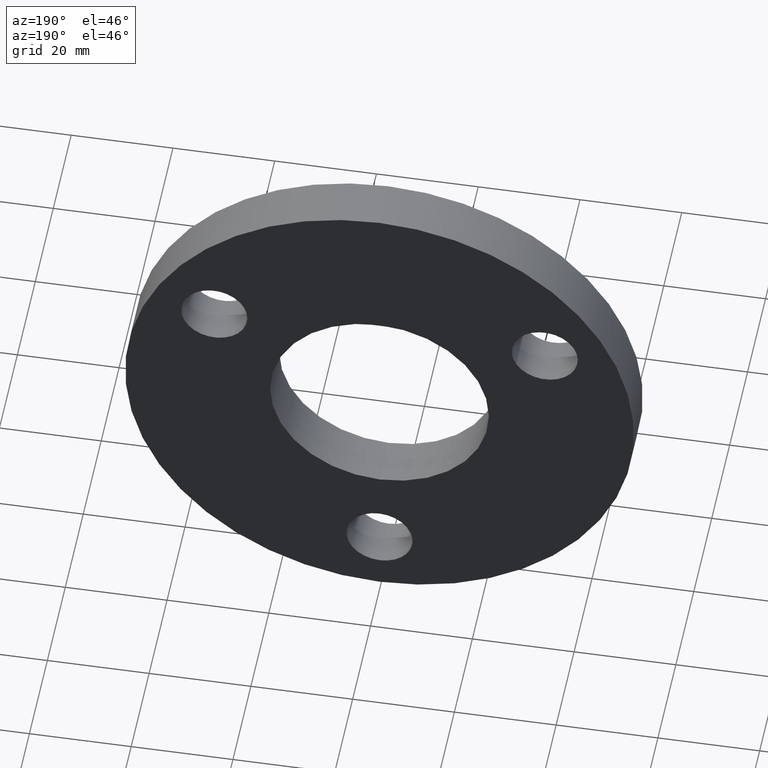
[diagram: clean part render]
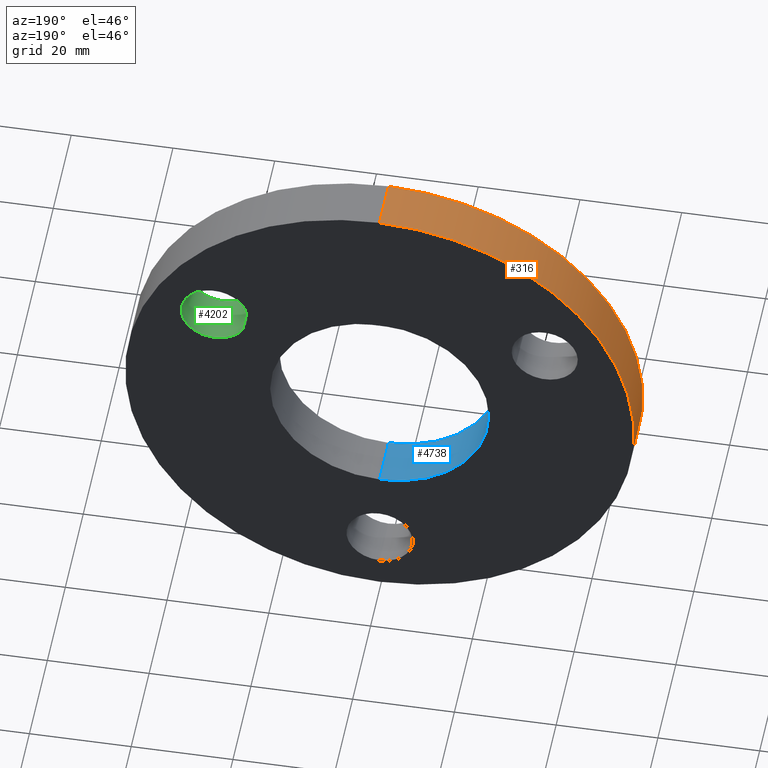
[diagram: same view with three faces highlighted in distinct colors, each labeled with its STEP entity id]
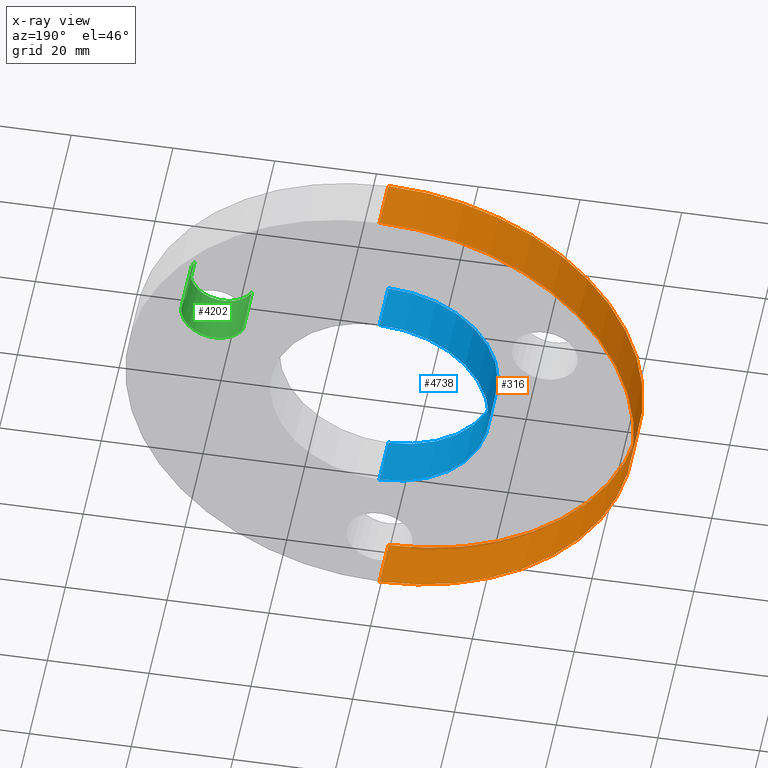
[diagram: x-ray of the same camera — body ghosted, the three highlighted faces saturated]
A machine part, auxiliary view with three faces highlighted in distinct colors.
The next image is the same camera in x-ray (body ghosted, the three faces saturated) — at least one of them is partly hidden behind the body in this view.
Their STEP definitions:

[orange] entity #316 — the highlighted cylindrical surface (partial cylindrical patch) has radius 50 mm, axis along (-0, -1, -0).
#240 = CIRCLE ( 'NONE', #1833, 50.00000000000000000 ) ;
#316 = ADVANCED_FACE ( 'NONE', ( #6270 ), #3357, .T. ) ;
#836 = VERTEX_POINT ( 'NONE', #10112 ) ;
#1053 = CARTESIAN_POINT ( 'NONE',  ( 0.0000000000000000000, 0.0000000000000000000, -50.00000000000000000 ) ) ;
#1070 = EDGE_CURVE ( 'NONE', #836, #9340, #3045, .T. ) ;
#1761 = DIRECTION ( 'NONE',  ( 0.0000000000000000000, 0.0000000000000000000, 1.000000000000000000 ) ) ;
#1833 = AXIS2_PLACEMENT_3D ( 'NONE', #8665, #7742, #1761 ) ;
#2502 = CARTESIAN_POINT ( 'NONE',  ( 6.123233995736766100E-015, 0.0000000000000000000, 50.00000000000000000 ) ) ;
#3045 = LINE ( 'NONE', #8041, #7652 ) ;
#3125 = DIRECTION ( 'NONE',  ( -0.0000000000000000000, -1.000000000000000000, -0.0000000000000000000 ) ) ;
#3357 = CYLINDRICAL_SURFACE ( 'NONE', #7812, 50.00000000000000000 ) ;
#3443 = EDGE_CURVE ( 'NONE', #6417, #8771, #7613, .T. ) ;
#4539 = CARTESIAN_POINT ( 'NONE',  ( 6.123233995736766100E-015, 10.00000000000000000, 50.00000000000000000 ) ) ;
#4894 = DIRECTION ( 'NONE',  ( 0.0000000000000000000, 1.000000000000000000, 0.0000000000000000000 ) ) ;
#5076 = ORIENTED_EDGE ( 'NONE', *, *, #3443, .F. ) ;
#5547 = ORIENTED_EDGE ( 'NONE', *, *, #9222, .T. ) ;
#6222 = VECTOR ( 'NONE', #11460, 1000.000000000000000 ) ;
#6270 = FACE_OUTER_BOUND ( 'NONE', #8185, .T. ) ;
#6417 = VERTEX_POINT ( 'NONE', #8209 ) ;
#6740 = CARTESIAN_POINT ( 'NONE',  ( 0.0000000000000000000, 10.00000000000000000, 0.0000000000000000000 ) ) ;
#7613 = LINE ( 'NONE', #4539, #6222 ) ;
#7616 = EDGE_CURVE ( 'NONE', #836, #6417, #11761, .T. ) ;
#7652 = VECTOR ( 'NONE', #3125, 1000.000000000000000 ) ;
#7742 = DIRECTION ( 'NONE',  ( 0.0000000000000000000, 1.000000000000000000, 0.0000000000000000000 ) ) ;
#7812 = AXIS2_PLACEMENT_3D ( 'NONE', #12455, #12498, #8567 ) ;
#8041 = CARTESIAN_POINT ( 'NONE',  ( 0.0000000000000000000, 10.00000000000000000, -50.00000000000000000 ) ) ;
#8185 = EDGE_LOOP ( 'NONE', ( #5076, #8747, #9774, #5547 ) ) ;
#8209 = CARTESIAN_POINT ( 'NONE',  ( 6.123233995736766100E-015, 10.00000000000000000, 50.00000000000000000 ) ) ;
#8567 = DIRECTION ( 'NONE',  ( 0.0000000000000000000, 0.0000000000000000000, -1.000000000000000000 ) ) ;
#8665 = CARTESIAN_POINT ( 'NONE',  ( 0.0000000000000000000, 0.0000000000000000000, 0.0000000000000000000 ) ) ;
#8747 = ORIENTED_EDGE ( 'NONE', *, *, #7616, .F. ) ;
#8771 = VERTEX_POINT ( 'NONE', #2502 ) ;
#8900 = DIRECTION ( 'NONE',  ( 0.0000000000000000000, 0.0000000000000000000, 1.000000000000000000 ) ) ;
#9222 = EDGE_CURVE ( 'NONE', #9340, #8771, #240, .T. ) ;
#9340 = VERTEX_POINT ( 'NONE', #1053 ) ;
#9774 = ORIENTED_EDGE ( 'NONE', *, *, #1070, .T. ) ;
#10112 = CARTESIAN_POINT ( 'NONE',  ( 0.0000000000000000000, 10.00000000000000000, -50.00000000000000000 ) ) ;
#11460 = DIRECTION ( 'NONE',  ( -0.0000000000000000000, -1.000000000000000000, -0.0000000000000000000 ) ) ;
#11761 = CIRCLE ( 'NONE', #12435, 50.00000000000000000 ) ;
#12435 = AXIS2_PLACEMENT_3D ( 'NONE', #6740, #4894, #8900 ) ;
#12455 = CARTESIAN_POINT ( 'NONE',  ( 0.0000000000000000000, 10.00000000000000000, 0.0000000000000000000 ) ) ;
#12498 = DIRECTION ( 'NONE',  ( -0.0000000000000000000, -1.000000000000000000, -0.0000000000000000000 ) ) ;

[blue] entity #4738 — the highlighted cylindrical surface (partial cylindrical patch) has radius 21.5 mm, axis along (-0, 1, -0).
#399 = VERTEX_POINT ( 'NONE', #6863 ) ;
#718 = VERTEX_POINT ( 'NONE', #4052 ) ;
#862 = DIRECTION ( 'NONE',  ( 0.0000000000000000000, 0.0000000000000000000, 1.000000000000000000 ) ) ;
#1121 = FACE_OUTER_BOUND ( 'NONE', #9127, .T. ) ;
#1397 = EDGE_CURVE ( 'NONE', #3913, #399, #3494, .T. ) ;
#1419 = EDGE_CURVE ( 'NONE', #718, #399, #12147, .T. ) ;
#1656 = VERTEX_POINT ( 'NONE', #9851 ) ;
#1778 = VECTOR ( 'NONE', #3904, 1000.000000000000000 ) ;
#2471 = CARTESIAN_POINT ( 'NONE',  ( 2.632990618166809200E-015, 10.00000000000000000, -21.50000000000000000 ) ) ;
#2813 = EDGE_CURVE ( 'NONE', #1656, #3913, #4399, .T. ) ;
#2968 = CARTESIAN_POINT ( 'NONE',  ( 0.0000000000000000000, 0.0000000000000000000, 0.0000000000000000000 ) ) ;
#3494 = CIRCLE ( 'NONE', #7325, 21.50000000000000000 ) ;
#3904 = DIRECTION ( 'NONE',  ( -0.0000000000000000000, 1.000000000000000000, -0.0000000000000000000 ) ) ;
#3913 = VERTEX_POINT ( 'NONE', #2471 ) ;
#4052 = CARTESIAN_POINT ( 'NONE',  ( 0.0000000000000000000, 0.0000000000000000000, 21.50000000000000000 ) ) ;
#4066 = CYLINDRICAL_SURFACE ( 'NONE', #10314, 21.50000000000000000 ) ;
#4280 = ORIENTED_EDGE ( 'NONE', *, *, #2813, .T. ) ;
#4399 = LINE ( 'NONE', #8822, #1778 ) ;
#4738 = ADVANCED_FACE ( 'NONE', ( #1121 ), #4066, .F. ) ;
#4789 = EDGE_CURVE ( 'NONE', #1656, #718, #11949, .T. ) ;
#6637 = CARTESIAN_POINT ( 'NONE',  ( 0.0000000000000000000, 0.0000000000000000000, 21.50000000000000000 ) ) ;
#6863 = CARTESIAN_POINT ( 'NONE',  ( 0.0000000000000000000, 10.00000000000000000, 21.50000000000000000 ) ) ;
#6985 = DIRECTION ( 'NONE',  ( 0.0000000000000000000, 1.000000000000000000, 0.0000000000000000000 ) ) ;
#7325 = AXIS2_PLACEMENT_3D ( 'NONE', #9600, #12385, #7482 ) ;
#7482 = DIRECTION ( 'NONE',  ( 0.0000000000000000000, 0.0000000000000000000, 1.000000000000000000 ) ) ;
#7594 = ORIENTED_EDGE ( 'NONE', *, *, #4789, .F. ) ;
#8737 = CARTESIAN_POINT ( 'NONE',  ( 0.0000000000000000000, 0.0000000000000000000, 0.0000000000000000000 ) ) ;
#8822 = CARTESIAN_POINT ( 'NONE',  ( 2.632990618166809200E-015, 0.0000000000000000000, -21.50000000000000000 ) ) ;
#9127 = EDGE_LOOP ( 'NONE', ( #7594, #4280, #10789, #9696 ) ) ;
#9600 = CARTESIAN_POINT ( 'NONE',  ( 0.0000000000000000000, 10.00000000000000000, 0.0000000000000000000 ) ) ;
#9647 = AXIS2_PLACEMENT_3D ( 'NONE', #2968, #6985, #11938 ) ;
#9696 = ORIENTED_EDGE ( 'NONE', *, *, #1419, .F. ) ;
#9851 = CARTESIAN_POINT ( 'NONE',  ( 2.632990618166809200E-015, 0.0000000000000000000, -21.50000000000000000 ) ) ;
#10314 = AXIS2_PLACEMENT_3D ( 'NONE', #8737, #12738, #862 ) ;
#10789 = ORIENTED_EDGE ( 'NONE', *, *, #1397, .T. ) ;
#11483 = DIRECTION ( 'NONE',  ( -0.0000000000000000000, 1.000000000000000000, -0.0000000000000000000 ) ) ;
#11530 = VECTOR ( 'NONE', #11483, 1000.000000000000000 ) ;
#11938 = DIRECTION ( 'NONE',  ( 0.0000000000000000000, 0.0000000000000000000, 1.000000000000000000 ) ) ;
#11949 = CIRCLE ( 'NONE', #9647, 21.50000000000000000 ) ;
#12147 = LINE ( 'NONE', #6637, #11530 ) ;
#12385 = DIRECTION ( 'NONE',  ( 0.0000000000000000000, 1.000000000000000000, 0.0000000000000000000 ) ) ;
#12738 = DIRECTION ( 'NONE',  ( -0.0000000000000000000, 1.000000000000000000, -0.0000000000000000000 ) ) ;

[green] entity #4202 — the highlighted cylindrical surface (edge-blend (fillet) strip) has radius 6.5 mm, axis along (0, 1, 0).
#4 = CARTESIAN_POINT ( 'NONE',  ( 26.84678751731753400, 0.0000000000000000000, 15.50000000000012400 ) ) ;
#305 = FACE_OUTER_BOUND ( 'NONE', #3533, .T. ) ;
#431 = CIRCLE ( 'NONE', #1227, 6.500000000000000900 ) ;
#695 = DIRECTION ( 'NONE',  ( 0.0000000000000000000, 1.000000000000000000, 0.0000000000000000000 ) ) ;
#1227 = AXIS2_PLACEMENT_3D ( 'NONE', #2406, #6402, #9318 ) ;
#1724 = DIRECTION ( 'NONE',  ( -0.8660254037844362700, 0.0000000000000000000, -0.5000000000000041100 ) ) ;
#1854 = CARTESIAN_POINT ( 'NONE',  ( 38.10511776651520700, 10.00000000000000000, 22.00000000000017800 ) ) ;
#2103 = EDGE_CURVE ( 'NONE', #7803, #5595, #10591, .T. ) ;
#2406 = CARTESIAN_POINT ( 'NONE',  ( 32.47595264191637200, 10.00000000000000000, 18.75000000000015300 ) ) ;
#3035 = CARTESIAN_POINT ( 'NONE',  ( 32.47595264191637200, 0.0000000000000000000, 18.75000000000015300 ) ) ;
#3533 = EDGE_LOOP ( 'NONE', ( #5066, #9248, #10329, #7082 ) ) ;
#4023 = DIRECTION ( 'NONE',  ( 0.0000000000000000000, 1.000000000000000000, 0.0000000000000000000 ) ) ;
#4202 = ADVANCED_FACE ( 'NONE', ( #305 ), #11962, .F. ) ;
#4277 = CARTESIAN_POINT ( 'NONE',  ( 38.10511776651520700, 0.0000000000000000000, 22.00000000000017800 ) ) ;
#5066 = ORIENTED_EDGE ( 'NONE', *, *, #12130, .F. ) ;
#5595 = VERTEX_POINT ( 'NONE', #8354 ) ;
#6081 = EDGE_CURVE ( 'NONE', #12170, #8152, #7905, .T. ) ;
#6402 = DIRECTION ( 'NONE',  ( 0.0000000000000000000, 1.000000000000000000, 0.0000000000000000000 ) ) ;
#6996 = AXIS2_PLACEMENT_3D ( 'NONE', #3035, #4023, #12003 ) ;
#7082 = ORIENTED_EDGE ( 'NONE', *, *, #2103, .F. ) ;
#7803 = VERTEX_POINT ( 'NONE', #4 ) ;
#7905 = LINE ( 'NONE', #9424, #8836 ) ;
#8152 = VERTEX_POINT ( 'NONE', #1854 ) ;
#8354 = CARTESIAN_POINT ( 'NONE',  ( 26.84678751731753400, 10.00000000000000000, 15.50000000000012400 ) ) ;
#8717 = CARTESIAN_POINT ( 'NONE',  ( 26.84678751731753400, 0.0000000000000000000, 15.50000000000012400 ) ) ;
#8836 = VECTOR ( 'NONE', #12415, 1000.000000000000000 ) ;
#9248 = ORIENTED_EDGE ( 'NONE', *, *, #6081, .T. ) ;
#9318 = DIRECTION ( 'NONE',  ( -0.8660254037844362700, 0.0000000000000000000, -0.5000000000000041100 ) ) ;
#9424 = CARTESIAN_POINT ( 'NONE',  ( 38.10511776651520700, 0.0000000000000000000, 22.00000000000017800 ) ) ;
#9515 = CARTESIAN_POINT ( 'NONE',  ( 32.47595264191637200, 0.0000000000000000000, 18.75000000000015300 ) ) ;
#9691 = DIRECTION ( 'NONE',  ( 0.0000000000000000000, 1.000000000000000000, 0.0000000000000000000 ) ) ;
#9874 = CIRCLE ( 'NONE', #12494, 6.500000000000000900 ) ;
#10329 = ORIENTED_EDGE ( 'NONE', *, *, #11899, .T. ) ;
#10591 = LINE ( 'NONE', #8717, #10915 ) ;
#10915 = VECTOR ( 'NONE', #9691, 1000.000000000000000 ) ;
#11899 = EDGE_CURVE ( 'NONE', #8152, #5595, #431, .T. ) ;
#11962 = CYLINDRICAL_SURFACE ( 'NONE', #6996, 6.500000000000000900 ) ;
#12003 = DIRECTION ( 'NONE',  ( -0.8660254037844362700, 0.0000000000000000000, -0.5000000000000041100 ) ) ;
#12130 = EDGE_CURVE ( 'NONE', #12170, #7803, #9874, .T. ) ;
#12170 = VERTEX_POINT ( 'NONE', #4277 ) ;
#12415 = DIRECTION ( 'NONE',  ( 0.0000000000000000000, 1.000000000000000000, 0.0000000000000000000 ) ) ;
#12494 = AXIS2_PLACEMENT_3D ( 'NONE', #9515, #695, #1724 ) ;